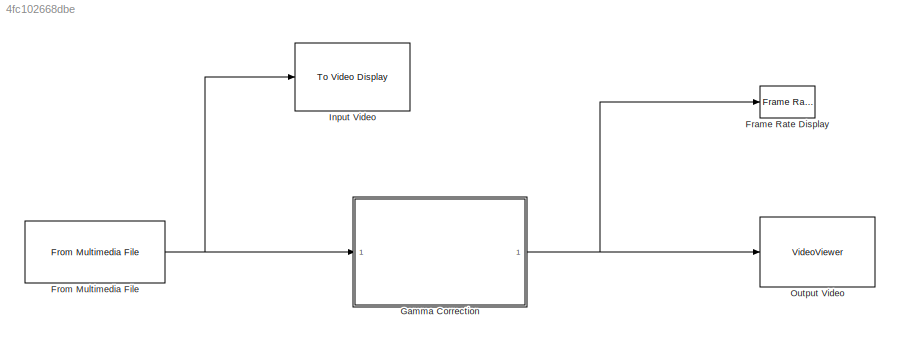
MODEL slx_4fc102668dbe
KIND model
CONFIG AbsTol = auto
CONFIG FixedStep = auto
CONFIG MaxStep = auto
CONFIG MinStep = auto
CONFIG RelTol = 1e-3
CONFIG SampleTimeConstraint = Unconstrained
CONFIG Solver = VariableStepAuto
CONFIG SolverMode = Auto
CONFIG SolverName = VariableStepAuto
CONFIG StartTime = 0.0
CONFIG StopTime = inf
BLOCK [Reference] Frame Rate Display  REF=visionsinks/Frame Rate
Display
  Ports = [1]
  SourceBlock = visionsinks/Frame Rate\nDisplay
  SourceType = Frame Rate Display
BLOCK [Reference] From Multimedia File  REF=dspvision/From Multimedia File
  Ports = [0, 1]
  SourceBlock = dspvision/From Multimedia File
  SourceType = From Multimedia File
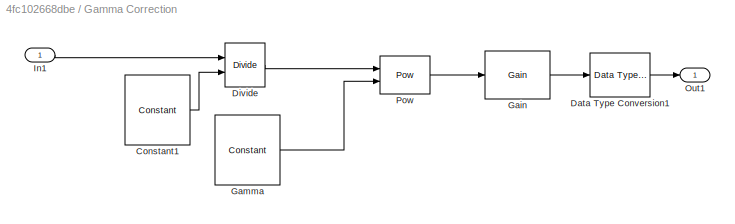
BLOCK [SubSystem] Gamma Correction
  Ports = [1, 1]
  RequestExecContextInheritance = off
  Variant = off
BLOCK [Reference] Gamma Correction/Constant1  REF=ModelComposer/Constant
  Description = Performs multiplication
  Ports = [0, 1]
  SourceBlock = ModelComposer/Constant
  SourceType = Constant
BLOCK [Reference] Gamma Correction/Data Type Conversion1  REF=ModelComposer/Data Type Conversion
  Ports = [1, 1]
  SourceBlock = ModelComposer/Data Type Conversion
  SourceType = Data Type Convert
BLOCK [Reference] Gamma Correction/Divide  REF=ModelComposer/Divide
  Description = Performs multiplication
  Ports = [2, 1]
  SourceBlock = ModelComposer/Divide
  SourceType = Divide
BLOCK [Reference] Gamma Correction/Gain  REF=ModelComposer/Gain
  Description = Performs multiplication
  Ports = [1, 1]
  SourceBlock = ModelComposer/Gain
  SourceType = Gain
BLOCK [Reference] Gamma Correction/Gamma  REF=ModelComposer/Constant
  Description = Performs multiplication
  Ports = [0, 1]
  SourceBlock = ModelComposer/Constant
  SourceType = Constant
BLOCK [Inport] Gamma Correction/In1
  IconDisplay = Port number
BLOCK [Outport] Gamma Correction/Out1
  IconDisplay = Port number
BLOCK [Reference] Gamma Correction/Pow  REF=ModelComposer/Pow
  Description = Performs multiplication
  Ports = [2, 1]
  SourceBlock = ModelComposer/Pow
  SourceType = Power
BLOCK [Reference] Input Video  REF=visionsinks/To Video Display
  Ports = [1]
  SourceBlock = visionsinks/To Video Display
  SourceType = To Video Display
BLOCK [VideoViewer] Output Video
  FigPos = [365 726.8 614.4 360]
  Ports = [1]
  ScopeSpecificationString = vipscopes.VideoViewerScopeCfg('CurrentConfiguration', extmgr.ConfigurationSet(extmgr.Configuration('Core','General UI',true),extmgr.Configuration('Core','Source UI',true),extmgr.Configuration('Sources','WiredSimulink',true,'LockSynchronous',true),extmgr.Configuration('Visuals','Video',true),extmgr.Configuration('Tools','Image Navigation Tools',true),extmgr.Configuration('Tools','Image Tool',true),...<+102ch>
  colormapValue = gray(256)
NET From Multimedia File:1 -> Gamma Correction:1, Input Video:1
LINE Gamma Correction/Constant1:1 -> Gamma Correction/Divide:2
LINE Gamma Correction/Data Type Conversion1:1 -> Gamma Correction/Out1:1
LINE Gamma Correction/Divide:1 -> Gamma Correction/Pow:1
LINE Gamma Correction/Gain:1 -> Gamma Correction/Data Type Conversion1:1
LINE Gamma Correction/Gamma:1 -> Gamma Correction/Pow:2
LINE Gamma Correction/In1:1 -> Gamma Correction/Divide:1
LINE Gamma Correction/Pow:1 -> Gamma Correction/Gain:1
NET Gamma Correction:1 -> Frame Rate Display:1, Output Video:1
note: NET lines group one-source signal fan-out (src -> all destinations, sorted); 1:1 wires keep LINE
